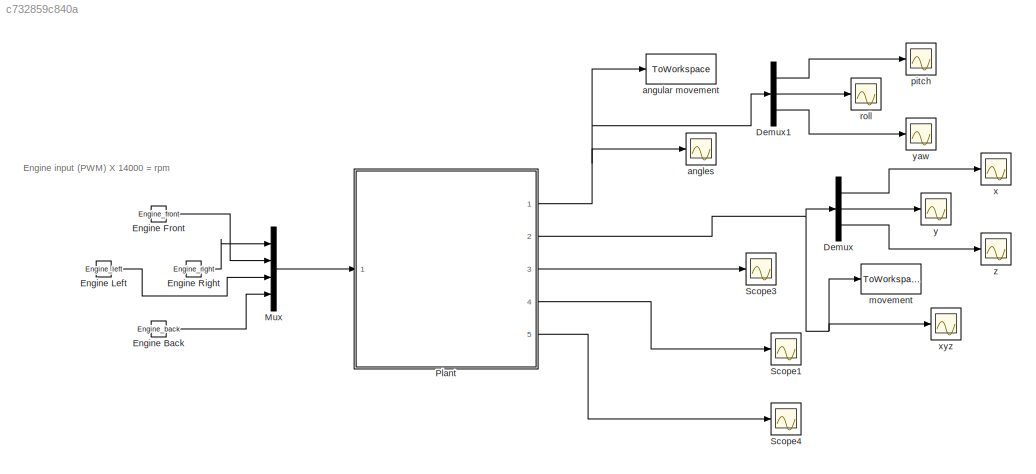
MODEL slx_c732859c840a
KIND model
BLOCK [Demux] Demux
  DisplayOption = bar
  Outputs = 3
  Ports = [1, 3]
BLOCK [Demux] Demux1
  DisplayOption = bar
  Outputs = 3
  Ports = [1, 3]
BLOCK [Constant] Engine Back
  Value = Engine_back
BLOCK [Constant] Engine Front
  Value = Engine_front
BLOCK [Constant] Engine Left
  Value = Engine_left
BLOCK [Constant] Engine Right
  Value = Engine_right
BLOCK [Mux] Mux
  DisplayOption = bar
  Ports = [4, 1]
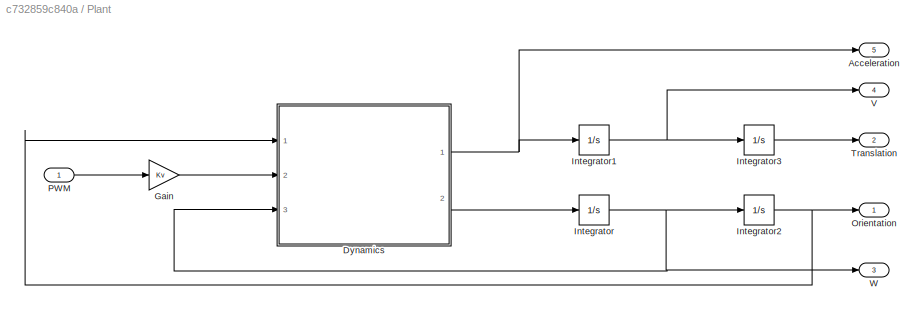
BLOCK [SubSystem] Plant
  Ports = [1, 5]
  RequestExecContextInheritance = off
BLOCK [Outport] Plant/Acceleration
  IconDisplay = Port number
  Port = 5
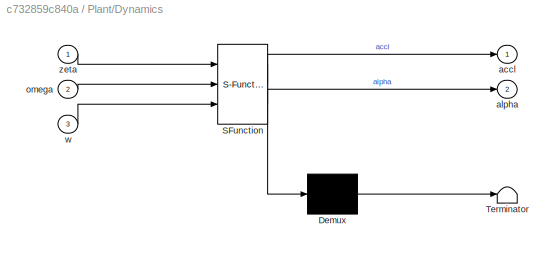
BLOCK [SubSystem] Plant/Dynamics
  ErrorFcn = Stateflow.Translate.translate
  PermitHierarchicalResolution = ExplicitOnly
  Ports = [3, 2]
  RequestExecContextInheritance = off
  SFBlockType = MATLAB Function
  TreatAsAtomicUnit = on
BLOCK [Demux] Plant/Dynamics/ Demux 
  Outputs = 1
  Ports = [1, 1]
BLOCK [S-Function] Plant/Dynamics/ SFunction 
  EnableBusSupport = on
  FunctionName = sf_sfun
  PortCounts = [3 3]
  Ports = [3, 3]
  Tag = Stateflow S-Function crazy_model 2
BLOCK [Terminator] Plant/Dynamics/ Terminator 
BLOCK [Outport] Plant/Dynamics/accl
  IconDisplay = Port number
BLOCK [Outport] Plant/Dynamics/alpha
  IconDisplay = Port number
  Port = 2
BLOCK [Inport] Plant/Dynamics/omega
  IconDisplay = Port number
  Port = 2
BLOCK [Inport] Plant/Dynamics/w
  IconDisplay = Port number
  Port = 3
BLOCK [Inport] Plant/Dynamics/zeta
  IconDisplay = Port number
BLOCK [Gain] Plant/Gain
  Gain = Kv
  Multiplication = Matrix(K*u)
  OutDataTypeStr = Inherit: Inherit via internal rule
  ParamDataTypeStr = Inherit: Inherit via internal rule
  SaturateOnIntegerOverflow = off
BLOCK [Integrator] Plant/Integrator
  InitialCondition = [0 0 0]'
  Ports = [1, 1]
BLOCK [Integrator] Plant/Integrator1
  InitialCondition = [0 0 0]'
  Ports = [1, 1]
BLOCK [Integrator] Plant/Integrator2
  InitialCondition = [0 0 0]'
  Ports = [1, 1]
BLOCK [Integrator] Plant/Integrator3
  InitialCondition = [0 0 0]'
  Ports = [1, 1]
BLOCK [Outport] Plant/Orientation
  IconDisplay = Port number
BLOCK [Inport] Plant/PWM
  IconDisplay = Port number
BLOCK [Outport] Plant/Translation
  IconDisplay = Port number
  Port = 2
BLOCK [Outport] Plant/V
  IconDisplay = Port number
  Port = 4
BLOCK [Outport] Plant/W
  IconDisplay = Port number
  Port = 3
BLOCK [Scope] Scope1
  Floating = off
  NumInputPorts = 1
  Ports = [1]
  SaveName = ScopeData1
  ShowLegends = off
  ZoomMode = yonly
BLOCK [Scope] Scope3
  Floating = off
  NumInputPorts = 1
  Ports = [1]
  SaveName = ScopeData3
  ShowLegends = off
BLOCK [Scope] Scope4
  Floating = off
  LimitDataPoints = off
  NumInputPorts = 1
  Ports = [1]
  SaveName = ScopeData4
  ShowLegends = off
  ZoomMode = yonly
BLOCK [Scope] angles
  Floating = off
  LimitDataPoints = off
  NumInputPorts = 1
  Ports = [1]
  SaveName = ScopeData10
  ShowLegends = off
  ZoomMode = yonly
BLOCK [ToWorkspace] angular movement
  FixptAsFi = on
  MaxDataPoints = inf
  Ports = [1]
  SampleTime = -1
  Save2DSignal = 3-D array (concatenate along third dimension)
  SaveFormat = Structure With Time
  VariableName = pitch_roll_yaw
BLOCK [ToWorkspace] movement
  FixptAsFi = on
  MaxDataPoints = inf
  Ports = [1]
  SampleTime = -1
  Save2DSignal = 3-D array (concatenate along third dimension)
  SaveFormat = Structure With Time
  VariableName = X_Y_Z
BLOCK [Scope] pitch
  Floating = off
  NumInputPorts = 1
  Ports = [1]
  ShowLegends = off
BLOCK [Scope] roll
  Floating = off
  NumInputPorts = 1
  Ports = [1]
  SaveName = ScopeData7
  ShowLegends = off
  TimeRange = 10
  YMax = 25
  YMin = 0
BLOCK [Scope] x
  Floating = off
  NumInputPorts = 1
  Ports = [1]
  SaveName = ScopeData2
  ShowLegends = off
  ZoomMode = yonly
BLOCK [Scope] xyz
  Floating = off
  LimitDataPoints = off
  NumInputPorts = 1
  Ports = [1]
  SaveName = ScopeData9
  ShowLegends = off
  TimeRange = 10
  YMax = 120
  YMin = -20
  ZoomMode = yonly
BLOCK [Scope] y
  Floating = off
  NumInputPorts = 1
  Ports = [1]
  SaveName = ScopeData5
  ShowLegends = off
  ZoomMode = yonly
BLOCK [Scope] yaw
  Floating = off
  NumInputPorts = 1
  Ports = [1]
  SaveName = ScopeData8
  ShowLegends = off
BLOCK [Scope] z
  Floating = off
  NumInputPorts = 1
  Ports = [1]
  SaveName = ScopeData6
  ShowLegends = off
  ZoomMode = yonly
ANNOTATION (root): Engine input (PWM) X 14000 = rpm
LINE Demux1:1 -> pitch:1
LINE Demux1:2 -> roll:1
LINE Demux1:3 -> yaw:1
LINE Demux:1 -> x:1
LINE Demux:2 -> y:1
LINE Demux:3 -> z:1
LINE Engine Back:1 -> Mux:4
LINE Engine Front:1 -> Mux:2
LINE Engine Left:1 -> Mux:3
LINE Engine Right:1 -> Mux:1
LINE Mux:1 -> Plant:1
NET Plant/Dynamics:1 -> Plant/Acceleration:1, Plant/Integrator1:1
LINE Plant/Dynamics:2 -> Plant/Integrator:1
LINE Plant/Gain:1 -> Plant/Dynamics:2
NET Plant/Integrator1:1 -> Plant/Integrator3:1, Plant/V:1
NET Plant/Integrator2:1 -> Plant/Dynamics:1, Plant/Orientation:1
LINE Plant/Integrator3:1 -> Plant/Translation:1
NET Plant/Integrator:1 -> Plant/Dynamics:3, Plant/Integrator2:1, Plant/W:1
LINE Plant/PWM:1 -> Plant/Gain:1
NET Plant:1 -> Demux1:1, angles:1, angular movement:1
NET Plant:2 -> Demux:1, movement:1, xyz:1
LINE Plant:3 -> Scope3:1
LINE Plant:4 -> Scope1:1
LINE Plant:5 -> Scope4:1
note: NET lines group one-source signal fan-out (src -> all destinations, sorted); 1:1 wires keep LINE
CHART Plant/Dynamics states=1 transitions=1
  STATE_LABEL 'eML_blk_kernel()'
  STATE_LABEL 'SCRIPT:\nfunction [accl, alpha] = fcn(zeta, omega, w)\n\n    Ixx = 2.09*10^(-05);\n    Iyy = 2.09*10^(-05);\n    Izz = 3.81*10^(-05);\n    I = diag([Ixx,Iyy,Izz]);                              % Inertia matrix - needs revision\n\n%   Ct = 10;\n%   Cq = 10;\n    d = 0.046;\n    m = 0.027;\n    g = 9.8;\n    % Inertia = ?\n\n%%%%%%%%%%%%%%%%%%%%%%%%%%%%%%%%%%%%%%%%%%%%%%%%%%%%%%%%%%%%%%%%%%%%%%%%%%%\n%3\n    theta =...<+861ch>'
